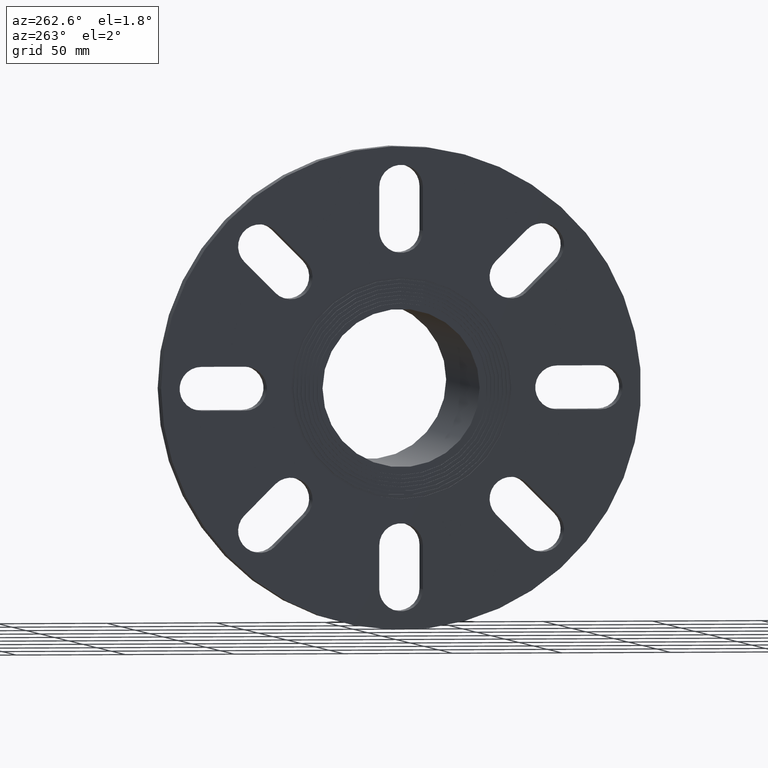
[diagram: clean part render]
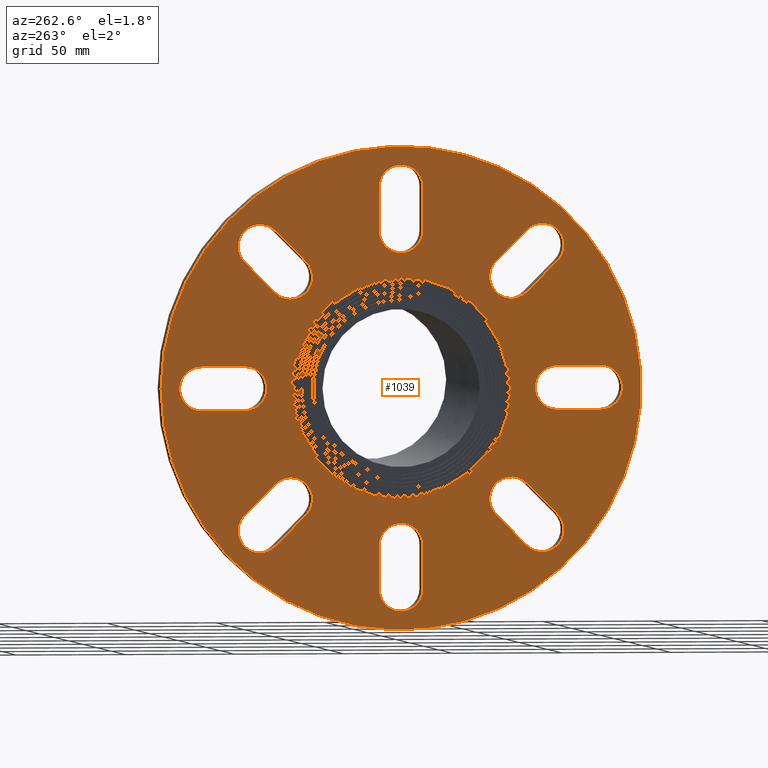
[diagram: same view with one face highlighted and labeled with its STEP entity id]
A machine part, auxiliary view. The second image highlights one B-rep face of the part: STEP entity #1039.
In plain terms, the highlighted planar face has unit normal (-1, -0, 0).
Its self-contained STEP definition (entity closure, byte-faithful):
#15=LINE('',#1655,#79);
#16=LINE('',#1658,#80);
#17=LINE('',#1663,#81);
#18=LINE('',#1666,#82);
#19=LINE('',#1671,#83);
#20=LINE('',#1674,#84);
#21=LINE('',#1679,#85);
#22=LINE('',#1682,#86);
#23=LINE('',#1687,#87);
#24=LINE('',#1690,#88);
#25=LINE('',#1695,#89);
#26=LINE('',#1698,#90);
#27=LINE('',#1703,#91);
#28=LINE('',#1706,#92);
#29=LINE('',#1711,#93);
#30=LINE('',#1714,#94);
#79=VECTOR('',#1341,20.);
#80=VECTOR('',#1344,20.);
#81=VECTOR('',#1347,20.);
#82=VECTOR('',#1350,20.);
#83=VECTOR('',#1353,20.);
#84=VECTOR('',#1356,20.);
#85=VECTOR('',#1359,20.);
#86=VECTOR('',#1362,20.);
#87=VECTOR('',#1365,20.);
#88=VECTOR('',#1368,20.);
#89=VECTOR('',#1371,20.);
#90=VECTOR('',#1374,20.);
#91=VECTOR('',#1377,20.);
#92=VECTOR('',#1380,20.);
#93=VECTOR('',#1383,20.);
#94=VECTOR('',#1386,20.);
#151=PLANE('',#1141);
#233=FACE_BOUND('',#378,.T.);
#234=FACE_BOUND('',#379,.T.);
#235=FACE_BOUND('',#380,.T.);
#236=FACE_BOUND('',#381,.T.);
#237=FACE_BOUND('',#382,.T.);
#238=FACE_BOUND('',#383,.T.);
#239=FACE_BOUND('',#384,.T.);
#240=FACE_BOUND('',#385,.T.);
#241=FACE_BOUND('',#386,.T.);
#285=FACE_OUTER_BOUND('',#377,.T.);
#377=EDGE_LOOP('',(#797));
#378=EDGE_LOOP('',(#798,#799,#800,#801));
#379=EDGE_LOOP('',(#802,#803,#804,#805));
#380=EDGE_LOOP('',(#806,#807,#808,#809));
#381=EDGE_LOOP('',(#810,#811,#812,#813));
#382=EDGE_LOOP('',(#814,#815,#816,#817));
#383=EDGE_LOOP('',(#818,#819,#820,#821));
#384=EDGE_LOOP('',(#822,#823,#824,#825));
#385=EDGE_LOOP('',(#826,#827,#828,#829));
#386=EDGE_LOOP('',(#830));
#480=CIRCLE('',#1139,50.4);
#481=CIRCLE('',#1142,110.);
#482=CIRCLE('',#1143,10.);
#483=CIRCLE('',#1144,10.);
#484=CIRCLE('',#1145,10.);
#485=CIRCLE('',#1146,10.);
#486=CIRCLE('',#1147,10.);
#487=CIRCLE('',#1148,10.);
#488=CIRCLE('',#1149,10.);
#489=CIRCLE('',#1150,10.);
#490=CIRCLE('',#1151,10.);
#491=CIRCLE('',#1152,10.);
#492=CIRCLE('',#1153,10.);
#493=CIRCLE('',#1154,10.);
#494=CIRCLE('',#1155,10.);
#495=CIRCLE('',#1156,10.);
#496=CIRCLE('',#1157,10.);
#497=CIRCLE('',#1158,10.);
#548=VERTEX_POINT('',#1645);
#549=VERTEX_POINT('',#1649);
#550=VERTEX_POINT('',#1651);
#551=VERTEX_POINT('',#1652);
#552=VERTEX_POINT('',#1654);
#553=VERTEX_POINT('',#1656);
#554=VERTEX_POINT('',#1659);
#555=VERTEX_POINT('',#1660);
#556=VERTEX_POINT('',#1662);
#557=VERTEX_POINT('',#1664);
#558=VERTEX_POINT('',#1667);
#559=VERTEX_POINT('',#1668);
#560=VERTEX_POINT('',#1670);
#561=VERTEX_POINT('',#1672);
#562=VERTEX_POINT('',#1675);
#563=VERTEX_POINT('',#1676);
#564=VERTEX_POINT('',#1678);
#565=VERTEX_POINT('',#1680);
#566=VERTEX_POINT('',#1683);
#567=VERTEX_POINT('',#1684);
#568=VERTEX_POINT('',#1686);
#569=VERTEX_POINT('',#1688);
#570=VERTEX_POINT('',#1691);
#571=VERTEX_POINT('',#1692);
#572=VERTEX_POINT('',#1694);
#573=VERTEX_POINT('',#1696);
#574=VERTEX_POINT('',#1699);
#575=VERTEX_POINT('',#1700);
#576=VERTEX_POINT('',#1702);
#577=VERTEX_POINT('',#1704);
#578=VERTEX_POINT('',#1707);
#579=VERTEX_POINT('',#1708);
#580=VERTEX_POINT('',#1710);
#581=VERTEX_POINT('',#1712);
#648=EDGE_CURVE('',#548,#548,#480,.T.);
#649=EDGE_CURVE('',#549,#549,#481,.T.);
#650=EDGE_CURVE('',#550,#551,#482,.T.);
#651=EDGE_CURVE('',#551,#552,#15,.T.);
#652=EDGE_CURVE('',#552,#553,#483,.T.);
#653=EDGE_CURVE('',#553,#550,#16,.T.);
#654=EDGE_CURVE('',#554,#555,#484,.T.);
#655=EDGE_CURVE('',#555,#556,#17,.T.);
#656=EDGE_CURVE('',#556,#557,#485,.T.);
#657=EDGE_CURVE('',#557,#554,#18,.T.);
#658=EDGE_CURVE('',#558,#559,#486,.T.);
#659=EDGE_CURVE('',#559,#560,#19,.T.);
#660=EDGE_CURVE('',#560,#561,#487,.T.);
#661=EDGE_CURVE('',#561,#558,#20,.T.);
#662=EDGE_CURVE('',#562,#563,#488,.T.);
#663=EDGE_CURVE('',#563,#564,#21,.T.);
#664=EDGE_CURVE('',#564,#565,#489,.T.);
#665=EDGE_CURVE('',#565,#562,#22,.T.);
#666=EDGE_CURVE('',#566,#567,#490,.T.);
#667=EDGE_CURVE('',#567,#568,#23,.T.);
#668=EDGE_CURVE('',#568,#569,#491,.T.);
#669=EDGE_CURVE('',#569,#566,#24,.T.);
#670=EDGE_CURVE('',#570,#571,#492,.T.);
#671=EDGE_CURVE('',#571,#572,#25,.T.);
#672=EDGE_CURVE('',#572,#573,#493,.T.);
#673=EDGE_CURVE('',#573,#570,#26,.T.);
#674=EDGE_CURVE('',#574,#575,#494,.T.);
#675=EDGE_CURVE('',#575,#576,#27,.T.);
#676=EDGE_CURVE('',#576,#577,#495,.T.);
#677=EDGE_CURVE('',#577,#574,#28,.T.);
#678=EDGE_CURVE('',#578,#579,#496,.T.);
#679=EDGE_CURVE('',#579,#580,#29,.T.);
#680=EDGE_CURVE('',#580,#581,#497,.T.);
#681=EDGE_CURVE('',#581,#578,#30,.T.);
#797=ORIENTED_EDGE('',*,*,#649,.F.);
#798=ORIENTED_EDGE('',*,*,#650,.T.);
#799=ORIENTED_EDGE('',*,*,#651,.T.);
#800=ORIENTED_EDGE('',*,*,#652,.T.);
#801=ORIENTED_EDGE('',*,*,#653,.T.);
#802=ORIENTED_EDGE('',*,*,#654,.T.);
#803=ORIENTED_EDGE('',*,*,#655,.T.);
#804=ORIENTED_EDGE('',*,*,#656,.T.);
#805=ORIENTED_EDGE('',*,*,#657,.T.);
#806=ORIENTED_EDGE('',*,*,#658,.T.);
#807=ORIENTED_EDGE('',*,*,#659,.T.);
#808=ORIENTED_EDGE('',*,*,#660,.T.);
#809=ORIENTED_EDGE('',*,*,#661,.T.);
#810=ORIENTED_EDGE('',*,*,#662,.T.);
#811=ORIENTED_EDGE('',*,*,#663,.T.);
#812=ORIENTED_EDGE('',*,*,#664,.T.);
#813=ORIENTED_EDGE('',*,*,#665,.T.);
#814=ORIENTED_EDGE('',*,*,#666,.T.);
#815=ORIENTED_EDGE('',*,*,#667,.T.);
#816=ORIENTED_EDGE('',*,*,#668,.T.);
#817=ORIENTED_EDGE('',*,*,#669,.T.);
#818=ORIENTED_EDGE('',*,*,#670,.T.);
#819=ORIENTED_EDGE('',*,*,#671,.T.);
#820=ORIENTED_EDGE('',*,*,#672,.T.);
#821=ORIENTED_EDGE('',*,*,#673,.T.);
#822=ORIENTED_EDGE('',*,*,#674,.T.);
#823=ORIENTED_EDGE('',*,*,#675,.T.);
#824=ORIENTED_EDGE('',*,*,#676,.T.);
#825=ORIENTED_EDGE('',*,*,#677,.T.);
#826=ORIENTED_EDGE('',*,*,#678,.T.);
#827=ORIENTED_EDGE('',*,*,#679,.T.);
#828=ORIENTED_EDGE('',*,*,#680,.T.);
#829=ORIENTED_EDGE('',*,*,#681,.T.);
#830=ORIENTED_EDGE('',*,*,#648,.T.);
#1039=ADVANCED_FACE('',(#285,#233,#234,#235,#236,#237,#238,#239,#240,#241),
#151,.T.);
#1139=AXIS2_PLACEMENT_3D('',#1646,#1331,#1332);
#1141=AXIS2_PLACEMENT_3D('',#1648,#1335,#1336);
#1142=AXIS2_PLACEMENT_3D('',#1650,#1337,#1338);
#1143=AXIS2_PLACEMENT_3D('',#1653,#1339,#1340);
#1144=AXIS2_PLACEMENT_3D('',#1657,#1342,#1343);
#1145=AXIS2_PLACEMENT_3D('',#1661,#1345,#1346);
#1146=AXIS2_PLACEMENT_3D('',#1665,#1348,#1349);
#1147=AXIS2_PLACEMENT_3D('',#1669,#1351,#1352);
#1148=AXIS2_PLACEMENT_3D('',#1673,#1354,#1355);
#1149=AXIS2_PLACEMENT_3D('',#1677,#1357,#1358);
#1150=AXIS2_PLACEMENT_3D('',#1681,#1360,#1361);
#1151=AXIS2_PLACEMENT_3D('',#1685,#1363,#1364);
#1152=AXIS2_PLACEMENT_3D('',#1689,#1366,#1367);
#1153=AXIS2_PLACEMENT_3D('',#1693,#1369,#1370);
#1154=AXIS2_PLACEMENT_3D('',#1697,#1372,#1373);
#1155=AXIS2_PLACEMENT_3D('',#1701,#1375,#1376);
#1156=AXIS2_PLACEMENT_3D('',#1705,#1378,#1379);
#1157=AXIS2_PLACEMENT_3D('',#1709,#1381,#1382);
#1158=AXIS2_PLACEMENT_3D('',#1713,#1384,#1385);
#1331=DIRECTION('center_axis',(1.,1.22464679914735E-16,0.));
#1332=DIRECTION('ref_axis',(0.,0.,-1.));
#1335=DIRECTION('center_axis',(-1.,-1.22464679914735E-16,0.));
#1336=DIRECTION('ref_axis',(0.,0.,1.));
#1337=DIRECTION('center_axis',(1.,1.22464679914735E-16,0.));
#1338=DIRECTION('ref_axis',(0.,0.,-1.));
#1339=DIRECTION('center_axis',(1.,1.22464679914735E-16,0.));
#1340=DIRECTION('ref_axis',(0.,0.,-1.));
#1341=DIRECTION('',(-1.22464679914735E-16,1.,-2.22044604925031E-16));
#1342=DIRECTION('center_axis',(1.,1.22464679914735E-16,0.));
#1343=DIRECTION('ref_axis',(-3.56547301794808E-31,3.5527136788005E-15,1.));
#1344=DIRECTION('',(1.22464679914735E-16,-1.,2.22044604925031E-16));
#1345=DIRECTION('center_axis',(1.,1.22464679914735E-16,0.));
#1346=DIRECTION('ref_axis',(-3.56547301794808E-31,-0.707106781186545,0.70710678118655));
#1347=DIRECTION('',(8.65956056235494E-17,-0.707106781186548,-0.707106781186547));
#1348=DIRECTION('center_axis',(1.,1.22464679914735E-16,0.));
#1349=DIRECTION('ref_axis',(0.,0.707106781186547,-0.707106781186548));
#1350=DIRECTION('',(-8.65956056235494E-17,0.707106781186548,0.707106781186547));
#1351=DIRECTION('center_axis',(1.,1.22464679914735E-16,0.));
#1352=DIRECTION('ref_axis',(-3.56547301794808E-31,-1.,3.60822483003176E-15));
#1353=DIRECTION('',(2.71926214689378E-32,-2.22044604925031E-16,-1.));
#1354=DIRECTION('center_axis',(1.,1.22464679914735E-16,0.));
#1355=DIRECTION('ref_axis',(0.,1.,0.));
#1356=DIRECTION('',(-2.71926214689378E-32,2.22044604925031E-16,1.));
#1357=DIRECTION('center_axis',(1.,1.22464679914735E-16,0.));
#1358=DIRECTION('ref_axis',(-3.56547301794808E-31,-0.70710678118655,-0.707106781186545));
#1359=DIRECTION('',(-8.65956056235493E-17,0.707106781186547,-0.707106781186548));
#1360=DIRECTION('center_axis',(1.,1.22464679914735E-16,0.));
#1361=DIRECTION('ref_axis',(0.,0.707106781186548,0.707106781186547));
#1362=DIRECTION('',(8.65956056235493E-17,-0.707106781186547,0.707106781186548));
#1363=DIRECTION('center_axis',(1.,1.22464679914735E-16,0.));
#1364=DIRECTION('ref_axis',(-3.56547301794808E-31,-3.77475828372553E-15,
-1.));
#1365=DIRECTION('',(-1.22464679914735E-16,1.,-2.77555756156289E-16));
#1366=DIRECTION('center_axis',(1.,1.22464679914735E-16,0.));
#1367=DIRECTION('ref_axis',(0.,2.22044604925031E-16,1.));
#1368=DIRECTION('',(1.22464679914735E-16,-1.,2.77555756156289E-16));
#1369=DIRECTION('center_axis',(1.,1.22464679914735E-16,0.));
#1370=DIRECTION('ref_axis',(-3.56547301794808E-31,0.707106781186545,-0.70710678118655));
#1371=DIRECTION('',(-8.65956056235494E-17,0.707106781186548,0.707106781186547));
#1372=DIRECTION('center_axis',(1.,1.22464679914735E-16,0.));
#1373=DIRECTION('ref_axis',(0.,-0.707106781186547,0.707106781186548));
#1374=DIRECTION('',(8.65956056235494E-17,-0.707106781186548,-0.707106781186547));
#1375=DIRECTION('center_axis',(1.,1.22464679914735E-16,0.));
#1376=DIRECTION('ref_axis',(-3.56547301794808E-31,1.,-3.77475828372553E-15));
#1377=DIRECTION('',(-3.39907768361723E-32,2.77555756156289E-16,1.));
#1378=DIRECTION('center_axis',(1.,1.22464679914735E-16,0.));
#1379=DIRECTION('ref_axis',(0.,-1.,2.22044604925031E-16));
#1380=DIRECTION('',(3.39907768361723E-32,-2.77555756156289E-16,-1.));
#1381=DIRECTION('center_axis',(1.,1.22464679914735E-16,0.));
#1382=DIRECTION('ref_axis',(-3.56547301794808E-31,0.70710678118655,0.707106781186545));
#1383=DIRECTION('',(8.65956056235493E-17,-0.707106781186547,0.707106781186548));
#1384=DIRECTION('center_axis',(1.,1.22464679914735E-16,0.));
#1385=DIRECTION('ref_axis',(0.,-0.707106781186548,-0.707106781186547));
#1386=DIRECTION('',(-8.65956056235493E-17,0.707106781186547,-0.707106781186548));
#1645=CARTESIAN_POINT('',(-118.,-8.27861236223611E-15,50.4));
#1646=CARTESIAN_POINT('Origin',(-118.,-1.44508322299388E-14,0.));
#1648=CARTESIAN_POINT('Origin',(-118.,110.,0.));
#1649=CARTESIAN_POINT('',(-118.,110.,0.));
#1650=CARTESIAN_POINT('Origin',(-118.,-1.44508322299388E-14,0.));
#1651=CARTESIAN_POINT('',(-118.,71.5,10.));
#1652=CARTESIAN_POINT('',(-118.,71.5,-10.));
#1653=CARTESIAN_POINT('Origin',(-118.,71.5,4.14315330016166E-15));
#1654=CARTESIAN_POINT('',(-118.,91.5,-10.));
#1655=CARTESIAN_POINT('',(-118.,90.75,-10.));
#1656=CARTESIAN_POINT('',(-118.,91.5,10.));
#1657=CARTESIAN_POINT('Origin',(-118.,91.5,-1.98008069557511E-15));
#1658=CARTESIAN_POINT('',(-118.,100.75,10.));
#1659=CARTESIAN_POINT('',(-118.,71.7713382904346,57.6292026667036));
#1660=CARTESIAN_POINT('',(-118.,57.6292026667036,71.7713382904346));
#1661=CARTESIAN_POINT('Origin',(-118.,64.7002704785691,64.7002704785691));
#1662=CARTESIAN_POINT('',(-118.,43.4870670429727,57.6292026667036));
#1663=CARTESIAN_POINT('',(-118.,52.7790674274191,66.92120305115));
#1664=CARTESIAN_POINT('',(-118.,57.6292026667036,43.4870670429727));
#1665=CARTESIAN_POINT('Origin',(-118.,50.5581348548381,50.5581348548381));
#1666=CARTESIAN_POINT('',(-118.,59.8501352392845,45.7079996155536));
#1667=CARTESIAN_POINT('',(-118.,10.,91.5));
#1668=CARTESIAN_POINT('',(-118.,-10.,91.5));
#1669=CARTESIAN_POINT('Origin',(-118.,-4.01733632061283E-15,91.5));
#1670=CARTESIAN_POINT('',(-118.,-10.,71.5));
#1671=CARTESIAN_POINT('',(-118.,-10.,45.75));
#1672=CARTESIAN_POINT('',(-118.,9.99999999999998,71.5));
#1673=CARTESIAN_POINT('Origin',(-118.,-1.28991205176141E-14,71.5));
#1674=CARTESIAN_POINT('',(-118.,9.99999999999997,35.75));
#1675=CARTESIAN_POINT('',(-118.,-57.6292026667036,71.7713382904346));
#1676=CARTESIAN_POINT('',(-118.,-71.7713382904346,57.6292026667036));
#1677=CARTESIAN_POINT('Origin',(-118.,-64.7002704785691,64.7002704785691));
#1678=CARTESIAN_POINT('',(-118.,-57.6292026667036,43.4870670429727));
#1679=CARTESIAN_POINT('',(-118.,-11.9212030511501,-2.2209325725809));
#1680=CARTESIAN_POINT('',(-118.,-43.4870670429727,57.6292026667036));
#1681=CARTESIAN_POINT('Origin',(-118.,-50.5581348548381,50.5581348548381));
#1682=CARTESIAN_POINT('',(-118.,9.29200038444638,4.85013523928454));
#1683=CARTESIAN_POINT('',(-118.,-91.5,10.));
#1684=CARTESIAN_POINT('',(-118.,-91.5,-9.99999999999998));
#1685=CARTESIAN_POINT('Origin',(-118.,-91.5,9.69870782983753E-15));
#1686=CARTESIAN_POINT('',(-118.,-71.5,-9.99999999999999));
#1687=CARTESIAN_POINT('',(-118.,9.24999999999998,-10.));
#1688=CARTESIAN_POINT('',(-118.,-71.5,10.));
#1689=CARTESIAN_POINT('Origin',(-118.,-71.5,9.69870782983753E-15));
#1690=CARTESIAN_POINT('',(-118.,19.25,9.99999999999998));
#1691=CARTESIAN_POINT('',(-118.,-71.7713382904346,-57.6292026667036));
#1692=CARTESIAN_POINT('',(-118.,-57.6292026667037,-71.7713382904346));
#1693=CARTESIAN_POINT('Origin',(-118.,-64.7002704785691,-64.7002704785691));
#1694=CARTESIAN_POINT('',(-118.,-43.4870670429727,-57.6292026667036));
#1695=CARTESIAN_POINT('',(-118.,2.22093257258093,-11.92120305115));
#1696=CARTESIAN_POINT('',(-118.,-57.6292026667036,-43.4870670429727));
#1697=CARTESIAN_POINT('Origin',(-118.,-50.5581348548382,-50.5581348548381));
#1698=CARTESIAN_POINT('',(-118.,-4.85013523928453,9.29200038444641));
#1699=CARTESIAN_POINT('',(-118.,-10.,-91.5));
#1700=CARTESIAN_POINT('',(-118.,9.99999999999997,-91.5));
#1701=CARTESIAN_POINT('Origin',(-118.,-3.06626889116166E-14,-91.5));
#1702=CARTESIAN_POINT('',(-118.,9.99999999999998,-71.5));
#1703=CARTESIAN_POINT('',(-118.,9.99999999999997,-45.75));
#1704=CARTESIAN_POINT('',(-118.,-10.,-71.5));
#1705=CARTESIAN_POINT('Origin',(-118.,-3.06626889116166E-14,-71.5));
#1706=CARTESIAN_POINT('',(-118.,-10.,-35.75));
#1707=CARTESIAN_POINT('',(-118.,57.6292026667036,-71.7713382904346));
#1708=CARTESIAN_POINT('',(-118.,71.7713382904346,-57.6292026667037));
#1709=CARTESIAN_POINT('Origin',(-118.,64.7002704785691,-64.7002704785691));
#1710=CARTESIAN_POINT('',(-118.,57.6292026667036,-43.4870670429727));
#1711=CARTESIAN_POINT('',(-118.,66.92120305115,-52.7790674274191));
#1712=CARTESIAN_POINT('',(-118.,43.4870670429726,-57.6292026667036));
#1713=CARTESIAN_POINT('Origin',(-118.,50.5581348548381,-50.5581348548382));
#1714=CARTESIAN_POINT('',(-118.,45.7079996155536,-59.8501352392845));